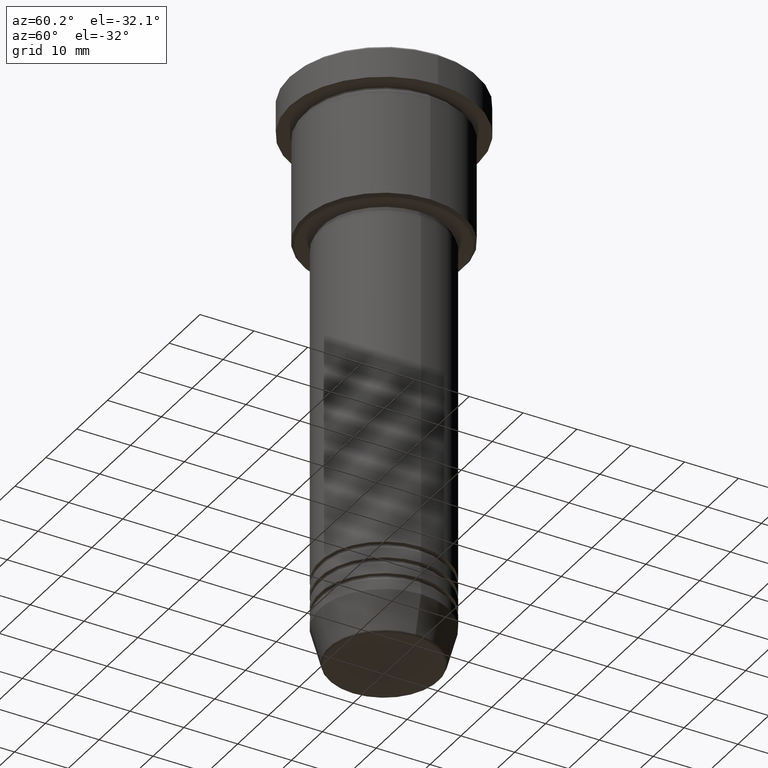
[diagram: clean part render]
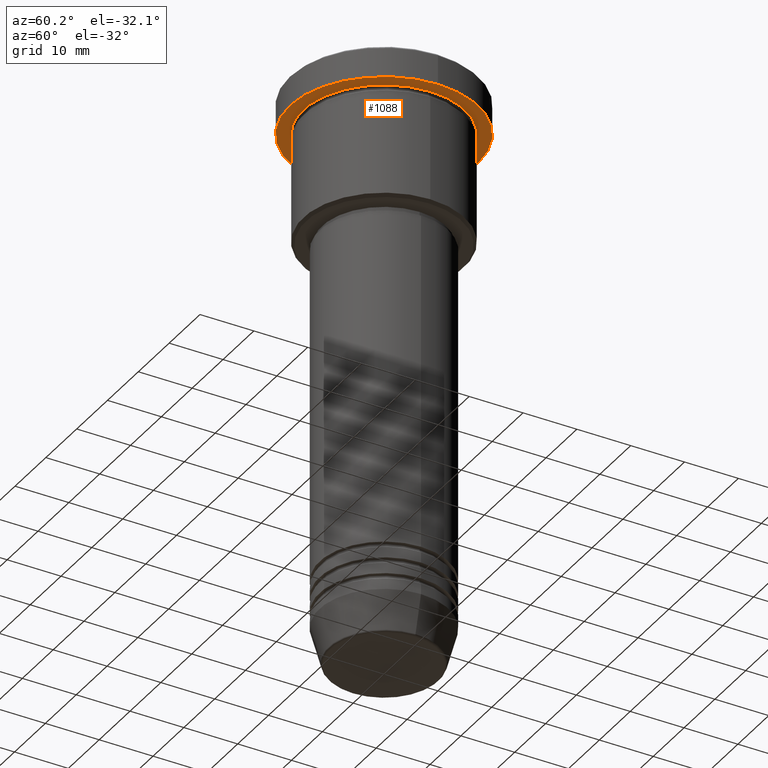
[diagram: same view with one face highlighted and labeled with its STEP entity id]
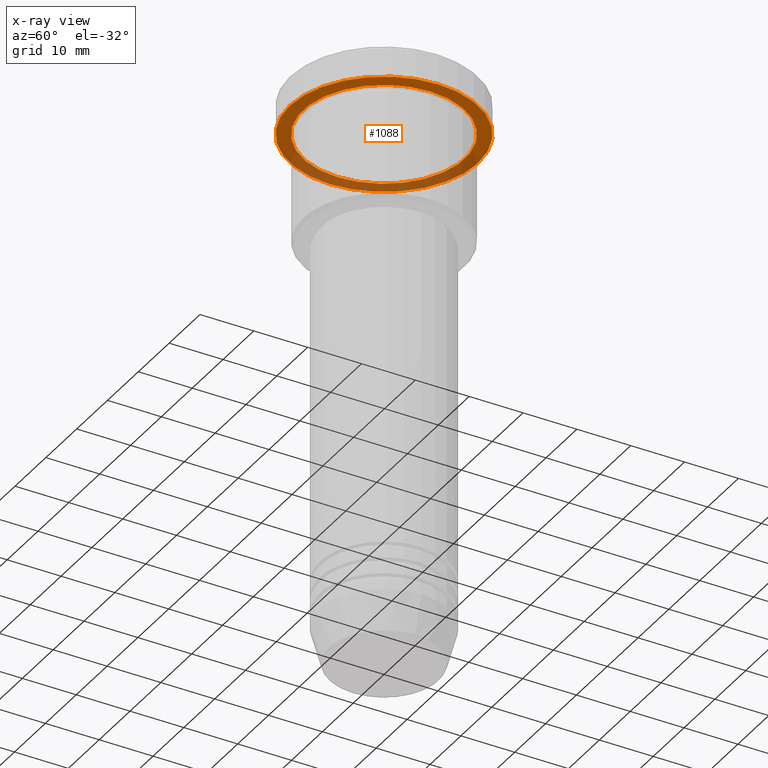
[diagram: x-ray of the same camera — body ghosted, the highlighted face saturated]
A machine part, auxiliary view. The second image highlights one B-rep face of the part: STEP entity #1088.
The next image is the same camera in x-ray: the body ghosted, the highlighted face saturated — about 36% of this face is hidden behind the body in this view.
In plain terms, the highlighted planar face has unit normal (0, 0, -1).
Its self-contained STEP definition (entity closure, byte-faithful):
#2 = ORIENTED_EDGE ( 'NONE', *, *, #1115, .T. ) ;
#12 = DIRECTION ( 'NONE',  ( -1.000000000000000000, 0.000000000000000000, -0.000000000000000000 ) ) ;
#24 = CIRCLE ( 'NONE', #1078, 15.00000000000000000 ) ;
#56 = DIRECTION ( 'NONE',  ( -0.000000000000000000, -0.000000000000000000, 1.000000000000000000 ) ) ;
#94 = DIRECTION ( 'NONE',  ( -0.000000000000000000, -0.000000000000000000, 1.000000000000000000 ) ) ;
#138 = DIRECTION ( 'NONE',  ( -0.000000000000000000, -0.000000000000000000, 1.000000000000000000 ) ) ;
#189 = EDGE_LOOP ( 'NONE', ( #910, #611 ) ) ;
#282 = CARTESIAN_POINT ( 'NONE',  ( 15.00000000000000000, 1.836970198721029589E-15, -5.999999999999994671 ) ) ;
#308 = FACE_BOUND ( 'NONE', #1135, .T. ) ;
#356 = CIRCLE ( 'NONE', #921, 17.50000000000000000 ) ;
#375 = AXIS2_PLACEMENT_3D ( 'NONE', #544, #450, #813 ) ;
#415 = CIRCLE ( 'NONE', #1075, 15.00000000000000000 ) ;
#445 = CIRCLE ( 'NONE', #375, 17.50000000000000000 ) ;
#450 = DIRECTION ( 'NONE',  ( -0.000000000000000000, -0.000000000000000000, 1.000000000000000000 ) ) ;
#458 = VERTEX_POINT ( 'NONE', #1063 ) ;
#477 = CARTESIAN_POINT ( 'NONE',  ( -15.00000000000000000, 0.000000000000000000, -5.999999999999994671 ) ) ;
#544 = CARTESIAN_POINT ( 'NONE',  ( 0.000000000000000000, 0.000000000000000000, -5.999999999999995559 ) ) ;
#583 = CARTESIAN_POINT ( 'NONE',  ( 0.000000000000000000, 0.000000000000000000, -5.999999999999995559 ) ) ;
#591 = EDGE_CURVE ( 'NONE', #458, #803, #445, .T. ) ;
#608 = DIRECTION ( 'NONE',  ( 1.000000000000000000, 0.000000000000000000, 0.000000000000000000 ) ) ;
#611 = ORIENTED_EDGE ( 'NONE', *, *, #591, .F. ) ;
#617 = CARTESIAN_POINT ( 'NONE',  ( 17.50000000000000000, 0.000000000000000000, -5.999999999999995559 ) ) ;
#665 = CARTESIAN_POINT ( 'NONE',  ( 0.000000000000000000, 17.50000000000000000, -5.999999999999995559 ) ) ;
#669 = DIRECTION ( 'NONE',  ( -1.000000000000000000, 0.000000000000000000, 0.000000000000000000 ) ) ;
#673 = PLANE ( 'NONE',  #864 ) ;
#731 = VERTEX_POINT ( 'NONE', #477 ) ;
#803 = VERTEX_POINT ( 'NONE', #617 ) ;
#813 = DIRECTION ( 'NONE',  ( 1.000000000000000000, 0.000000000000000000, 0.000000000000000000 ) ) ;
#838 = EDGE_CURVE ( 'NONE', #803, #458, #356, .T. ) ;
#864 = AXIS2_PLACEMENT_3D ( 'NONE', #665, #1030, #12 ) ;
#874 = EDGE_CURVE ( 'NONE', #731, #1025, #415, .T. ) ;
#910 = ORIENTED_EDGE ( 'NONE', *, *, #838, .F. ) ;
#921 = AXIS2_PLACEMENT_3D ( 'NONE', #968, #56, #608 ) ;
#968 = CARTESIAN_POINT ( 'NONE',  ( 0.000000000000000000, 0.000000000000000000, -5.999999999999995559 ) ) ;
#971 = DIRECTION ( 'NONE',  ( -1.000000000000000000, 0.000000000000000000, 0.000000000000000000 ) ) ;
#1011 = ORIENTED_EDGE ( 'NONE', *, *, #874, .T. ) ;
#1025 = VERTEX_POINT ( 'NONE', #282 ) ;
#1030 = DIRECTION ( 'NONE',  ( 0.000000000000000000, 0.000000000000000000, -1.000000000000000000 ) ) ;
#1063 = CARTESIAN_POINT ( 'NONE',  ( -17.50000000000000000, 2.143131898507868248E-15, -5.999999999999995559 ) ) ;
#1065 = CARTESIAN_POINT ( 'NONE',  ( 0.000000000000000000, 0.000000000000000000, -5.999999999999995559 ) ) ;
#1075 = AXIS2_PLACEMENT_3D ( 'NONE', #1065, #138, #971 ) ;
#1078 = AXIS2_PLACEMENT_3D ( 'NONE', #583, #94, #669 ) ;
#1088 = ADVANCED_FACE ( 'NONE', ( #308, #1122 ), #673, .T. ) ;
#1115 = EDGE_CURVE ( 'NONE', #1025, #731, #24, .T. ) ;
#1122 = FACE_OUTER_BOUND ( 'NONE', #189, .T. ) ;
#1135 = EDGE_LOOP ( 'NONE', ( #1011, #2 ) ) ;